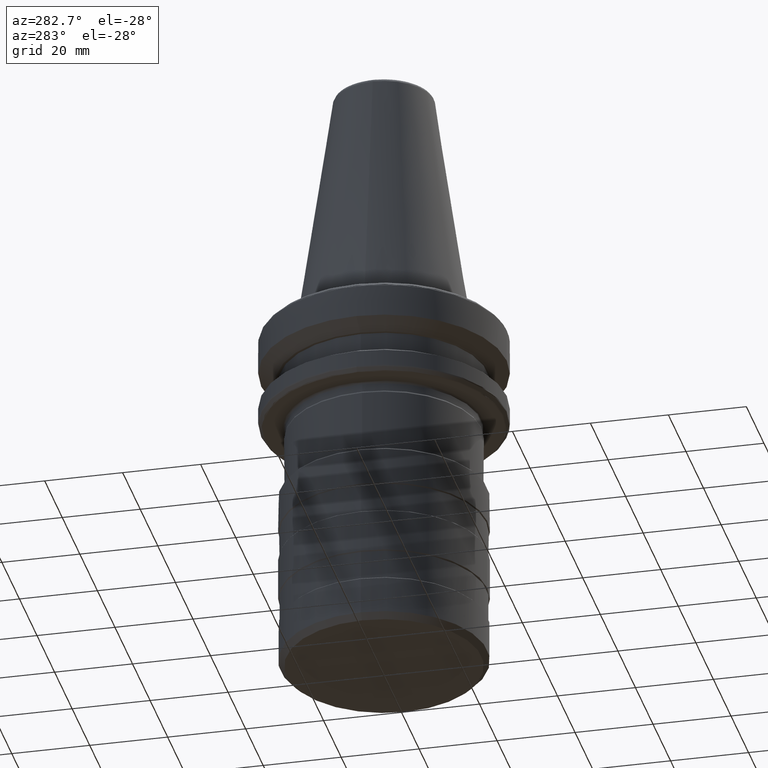
[diagram: clean part render]
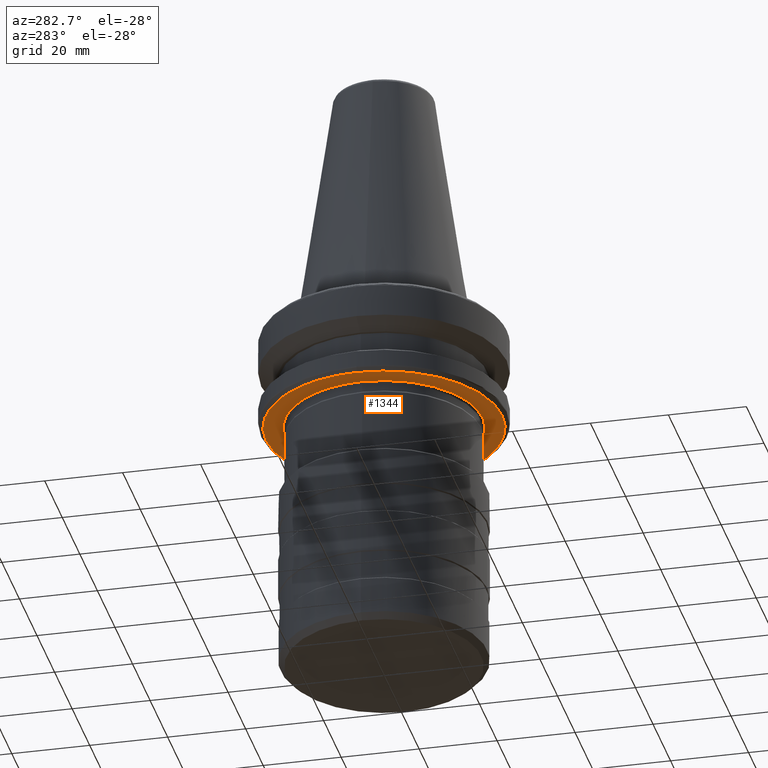
[diagram: same view with one face highlighted and labeled with its STEP entity id]
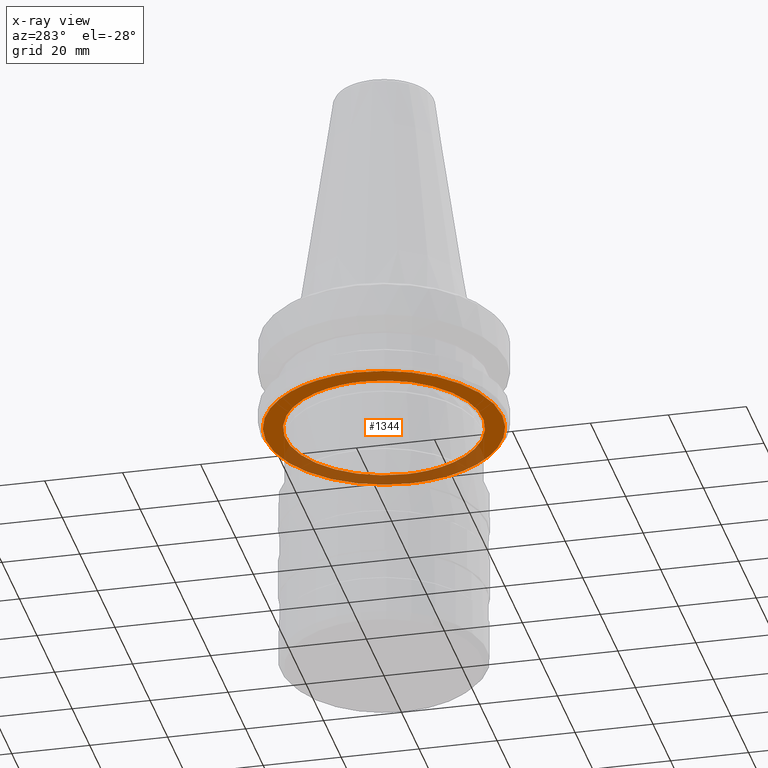
[diagram: x-ray of the same camera — body ghosted, the highlighted face saturated]
A machine part, auxiliary view. The second image highlights one B-rep face of the part: STEP entity #1344.
The next image is the same camera in x-ray: the body ghosted, the highlighted face saturated — about 34% of this face is hidden behind the body in this view.
In plain terms, the highlighted planar face has unit normal (0, 0, -1).
Its self-contained STEP definition (entity closure, byte-faithful):
#1 = B_SPLINE_CURVE_WITH_KNOTS ( 'NONE', 3,
 ( #124, #126, #106, #105, #102, #98, #96, #95, #93, #92, #89, #86, #85, #83, #81, #77, #75, #72, #71, #68, #61, #58, #57, #55, #53, #48, #45, #44, #41, #37, #34, #32, #29, #27, #22, #16, #15, #13, #11, #6, #3, #2, #2742, #1839, #1650, #1407, #2326, #1161, #2124, #730, #3173, #167, #1856, #425, #3159, #3147, #3127, #3116, #3104, #3093, #3080, #2029, #630, #2231, #3065, #3052, #3038, #3026, #3009, #3005, #2985, #2958, #2950, #2947, #2941, #2938, #2927, #2922, #2913, #2910, #2901, #2898, #909, #2479, #1159, #2884, #2862, #2849, #2837, #2822, #2816, #2804, #2791, #2766, #2752, #2733, #2721, #2709, #2697, #2676, #2673, #2655, #2642, #2634, #2631, #2616, #2601, #2597, #2585, #2579, #2567, #2549, #2539, #2528, #1619, #177, #1866, #2497, #2485, #2468, #2446, #2436, #2420, #2272, #920, #2492, #2410, #2401, #2389, #2379, #2065, #668, #2265, #2377, #2370, #2369, #2361, #2360, #2353, #2348 ),
 .UNSPECIFIED., .F., .F.,
 ( 4, 1, 1, 1, 1, 1, 1, 2, 2, 1, 1, 1, 1, 1, 1, 2, 2, 1, 1, 1, 1, 1, 1, 2, 2, 1, 1, 1, 1, 1, 1, 2, 2, 1, 1, 1, 1, 1, 1, 2, 2, 1, 1, 1, 1, 1, 2, 2, 1, 1, 1, 1, 2, 2, 2, 1, 1, 1, 1, 2, 2, 1, 1, 1, 1, 1, 2, 2, 1, 1, 1, 1, 1, 1, 2, 2, 1, 1, 1, 1, 1, 1, 2, 2, 1, 1, 1, 1, 1, 1, 2, 2, 1, 1, 1, 1, 1, 1, 2, 2, 1, 1, 1, 1, 1, 1, 2, 2, 4 ),
 ( 0.0000000000000000000, 0.03124999999999619700, 0.04687499999999429600, 0.05468749999999335900, 0.05859374999999288800, 0.06054687499999265200, 0.06152343749999254800, 0.06201171874999247100, 0.06249999999999238800, 0.09374999999998763500, 0.1093749999999852600, 0.1171874999999840500, 0.1210937499999834400, 0.1230468749999831400, 0.1240234374999829700, 0.1245117187499829200, 0.1249999999999828700, 0.1562499999999790200, 0.1718749999999771000, 0.1796874999999761000, 0.1835937499999756900, 0.1855468749999754900, 0.1865234374999754400, 0.1870117187499754100, 0.1874999999999753800, 0.2187499999999759600, 0.2343749999999762100, 0.2421874999999764100, 0.2460937499999765200, 0.2480468749999765700, 0.2490234374999765500, 0.2495117187499765700, 0.2499999999999766300, 0.2812499999999810700, 0.2968749999999833500, 0.3046874999999844600, 0.3085937499999850700, 0.3105468749999852900, 0.3115234374999854000, 0.3120117187499855100, 0.3124999999999856200, 0.3437499999999882300, 0.3593749999999895600, 0.3671874999999901700, 0.3710937499999905100, 0.3730468749999905600, 0.3740234374999905600, 0.3749999999999905600, 0.4062499999999902900, 0.4218749999999901200, 0.4296874999999900600, 0.4335937499999900600, 0.4355468749999900100, 0.4374999999999900100, 0.4999999999999895600, 0.5312499999999893400, 0.5468749999999892300, 0.5546874999999891200, 0.5585937499999891200, 0.5605468749999891200, 0.5624999999999890100, 0.5937499999999886800, 0.6093749999999885600, 0.6171874999999885600, 0.6210937499999884500, 0.6230468749999884500, 0.6240234374999884500, 0.6249999999999884500, 0.6562499999999894500, 0.6718749999999900100, 0.6796874999999902300, 0.6835937499999904500, 0.6855468749999905600, 0.6865234374999905600, 0.6870117187499905600, 0.6874999999999905600, 0.7187499999999894500, 0.7343749999999889000, 0.7421874999999887900, 0.7460937499999885600, 0.7480468749999884500, 0.7490234374999884500, 0.7495117187499884500, 0.7499999999999883400, 0.7812499999999891200, 0.7968749999999894500, 0.8046874999999895600, 0.8085937499999896700, 0.8105468749999897900, 0.8115234374999897900, 0.8120117187499897900, 0.8124999999999897900, 0.8437499999999912300, 0.8593749999999920100, 0.8671874999999925600, 0.8710937499999926700, 0.8730468749999927800, 0.8740234374999928900, 0.8745117187499930100, 0.8749999999999930100, 0.9062499999999944500, 0.9218749999999952300, 0.9296874999999955600, 0.9335937499999957800, 0.9355468749999958900, 0.9365234374999960000, 0.9370117187499960000, 0.9374999999999960000, 1.000000000000000000 ),
 .UNSPECIFIED. ) ;
#2 = CARTESIAN_POINT ( 'NONE',  ( 19.70759785706100700, 15.88992787574538700, -26.99999999999999600 ) ) ;
#3 = CARTESIAN_POINT ( 'NONE',  ( 20.24831878283100300, 15.16890737674791500, -27.00000000000000000 ) ) ;
#6 = CARTESIAN_POINT ( 'NONE',  ( 20.25505682243481700, 15.15990716839539900, -27.00000000000000000 ) ) ;
#11 = CARTESIAN_POINT ( 'NONE',  ( 20.27008978907835500, 15.13979989706015200, -27.00000000000000000 ) ) ;
#13 = CARTESIAN_POINT ( 'NONE',  ( 20.29261538261001300, 15.10962455013603800, -27.00000000000000000 ) ) ;
#15 = CARTESIAN_POINT ( 'NONE',  ( 20.34500810581500100, 15.03911432786448000, -27.00000000000000000 ) ) ;
#16 = CARTESIAN_POINT ( 'NONE',  ( 20.44912557208272500, 14.89768956552687700, -26.99999999999999300 ) ) ;
#22 = CARTESIAN_POINT ( 'NONE',  ( 20.65468858404920700, 14.61322276967351800, -27.00000000000000400 ) ) ;
#27 = CARTESIAN_POINT ( 'NONE',  ( 21.05512692570624400, 14.03782009325436600, -27.00000000000000000 ) ) ;
#29 = CARTESIAN_POINT ( 'NONE',  ( 21.81325287991667500, 12.86113840156619900, -27.00000000000000000 ) ) ;
#32 = CARTESIAN_POINT ( 'NONE',  ( 22.38978816220507200, 11.80819465637664000, -27.00000000000000000 ) ) ;
#34 = CARTESIAN_POINT ( 'NONE',  ( 22.74706967159098900, 11.07524063812788600, -27.00000000000000400 ) ) ;
#37 = CARTESIAN_POINT ( 'NONE',  ( 22.75139803042312900, 11.06634423136310200, -27.00000000000001100 ) ) ;
#41 = CARTESIAN_POINT ( 'NONE',  ( 22.76120219621035200, 11.04616368164451500, -27.00000000000000400 ) ) ;
#44 = CARTESIAN_POINT ( 'NONE',  ( 22.77588761324035000, 11.01588492977819600, -27.00000000000000000 ) ) ;
#45 = CARTESIAN_POINT ( 'NONE',  ( 22.81000776475438500, 10.94517901773773100, -26.99999999999999600 ) ) ;
#48 = CARTESIAN_POINT ( 'NONE',  ( 22.87766478155865400, 10.80354522958055900, -27.00000000000000000 ) ) ;
#53 = CARTESIAN_POINT ( 'NONE',  ( 23.01064567027204400, 10.51938979696127100, -26.99999999999998900 ) ) ;
#55 = CARTESIAN_POINT ( 'NONE',  ( 23.26727486811810800, 9.947527506502877900, -27.00000000000000400 ) ) ;
#57 = CARTESIAN_POINT ( 'NONE',  ( 23.74320294548735800, 8.789597224706769300, -27.00000000000000400 ) ) ;
#58 = CARTESIAN_POINT ( 'NONE',  ( 24.08714646610756600, 7.772732924517013600, -27.00000000000000400 ) ) ;
#61 = CARTESIAN_POINT ( 'NONE',  ( 24.29113833568242200, 7.073238547964074900, -27.00000000000000000 ) ) ;
#68 = CARTESIAN_POINT ( 'NONE',  ( 24.29356541856781600, 7.064895190226048200, -27.00000000000001100 ) ) ;
#71 = CARTESIAN_POINT ( 'NONE',  ( 24.29911365320728600, 7.045786859128013700, -27.00000000000000000 ) ) ;
#72 = CARTESIAN_POINT ( 'NONE',  ( 24.30741882046561400, 7.017120841067926700, -27.00000000000000400 ) ) ;
#75 = CARTESIAN_POINT ( 'NONE',  ( 24.32667725116206700, 6.950208815703138800, -27.00000000000000000 ) ) ;
#77 = CARTESIAN_POINT ( 'NONE',  ( 24.36471294092977800, 6.816286165408451200, -27.00000000000000400 ) ) ;
#81 = CARTESIAN_POINT ( 'NONE',  ( 24.43885963396438000, 6.548046466558788300, -27.00000000000000000 ) ) ;
#83 = CARTESIAN_POINT ( 'NONE',  ( 24.57945427403039700, 6.009989475818181300, -27.00000000000000700 ) ) ;
#85 = CARTESIAN_POINT ( 'NONE',  ( 24.82984857014956900, 4.927565122171978700, -27.00000000000001100 ) ) ;
#86 = CARTESIAN_POINT ( 'NONE',  ( 24.99168085137255000, 3.988955038192344200, -26.99999999999999600 ) ) ;
#89 = CARTESIAN_POINT ( 'NONE',  ( 25.07742533986922600, 3.348554767751062300, -27.00000000000000000 ) ) ;
#92 = CARTESIAN_POINT ( 'NONE',  ( 25.07843386591239500, 3.340988078441963900, -26.99999999999999600 ) ) ;
#93 = CARTESIAN_POINT ( 'NONE',  ( 25.08074787253885800, 3.323568221957828000, -27.00000000000000400 ) ) ;
#95 = CARTESIAN_POINT ( 'NONE',  ( 25.08420521708496400, 3.297437581909527200, -26.99999999999999300 ) ) ;
#96 = CARTESIAN_POINT ( 'NONE',  ( 25.09217669660422300, 3.236460101208896500, -27.00000000000000700 ) ) ;
#98 = CARTESIAN_POINT ( 'NONE',  ( 25.10773702462259000, 3.114481190789131200, -27.00000000000000400 ) ) ;
#102 = CARTESIAN_POINT ( 'NONE',  ( 25.13732715657889100, 2.870427573875642800, -26.99999999999999600 ) ) ;
#105 = CARTESIAN_POINT ( 'NONE',  ( 25.19038532416964000, 2.381937155752838800, -27.00000000000000400 ) ) ;
#106 = CARTESIAN_POINT ( 'NONE',  ( 25.27201327406381600, 1.403423582323891400, -26.99999999999999300 ) ) ;
#124 = CARTESIAN_POINT ( 'NONE',  ( 25.29999999848808700, 0.0000000000000000000, -26.99999999984028100 ) ) ;
#126 = CARTESIAN_POINT ( 'NONE',  ( 25.29999999919485300, 0.5620701127847933500, -27.00000000000000700 ) ) ;
#137 = CARTESIAN_POINT ( 'NONE',  ( -25.29999999848808700, 0.0000000000000000000, -26.99999999984028400 ) ) ;
#167 = CARTESIAN_POINT ( 'NONE',  ( 15.90973808891065200, 19.69518901342916500, -27.00000000000000400 ) ) ;
#175 = CARTESIAN_POINT ( 'NONE',  ( -25.29999999848808700, 0.0000000000000000000, -26.99999999984028400 ) ) ;
#177 = CARTESIAN_POINT ( 'NONE',  ( -22.73056065726004600, 11.10908274653019100, -27.00000000000000000 ) ) ;
#188 = CARTESIAN_POINT ( 'NONE',  ( -25.08074787253889700, -3.323568221961345600, -27.00000000000000700 ) ) ;
#259 = DIRECTION ( 'NONE',  ( -1.000000000000000000, 0.0000000000000000000, -0.0000000000000000000 ) ) ;
#260 = DIRECTION ( 'NONE',  ( 0.0000000000000000000, 0.0000000000000000000, -1.000000000000000000 ) ) ;
#270 = CARTESIAN_POINT ( 'NONE',  ( 30.69832634999999900, -30.69832634999999900, -27.00000000000000000 ) ) ;
#279 = PLANE ( 'NONE',  #1037 ) ;
#367 = EDGE_LOOP ( 'NONE', ( #1122, #2057 ) ) ;
#418 = EDGE_CURVE ( 'NONE', #699, #2266, #467, .T. ) ;
#425 = CARTESIAN_POINT ( 'NONE',  ( 13.36730212562983800, 21.49013669487330000, -27.00000000000000000 ) ) ;
#449 = CARTESIAN_POINT ( 'NONE',  ( -25.07742533986936500, -3.348554767751069900, -27.00000000000000000 ) ) ;
#467 =( BOUNDED_CURVE ( )  B_SPLINE_CURVE ( 3, ( #2153, #1374, #1687, #2201 ),
 .UNSPECIFIED., .F., .F. ) 
 B_SPLINE_CURVE_WITH_KNOTS ( ( 4, 4 ),
 ( 0.0000000000000000000, 1.000000000000000000 ),
 .UNSPECIFIED. ) 
 CURVE ( )  GEOMETRIC_REPRESENTATION_ITEM ( )  RATIONAL_B_SPLINE_CURVE ( ( 0.9777428172505076000, 0.3259142724168357900, 0.3259142724168357900, 0.9777428172505076000 ) ) 
 REPRESENTATION_ITEM ( '' )  );
#630 = CARTESIAN_POINT ( 'NONE',  ( 7.942536895876052000, 24.03084427828005300, -27.00000000000000000 ) ) ;
#668 = CARTESIAN_POINT ( 'NONE',  ( -25.03782867249879400, 3.634284708277769400, -26.99999999999999600 ) ) ;
#682 = CARTESIAN_POINT ( 'NONE',  ( -24.82984857013788400, -4.927565122137342400, -26.99999999999999300 ) ) ;
#690 = CARTESIAN_POINT ( 'NONE',  ( 25.29999999848808700, 0.0000000000000000000, -26.99999999984028100 ) ) ;
#699 = VERTEX_POINT ( 'NONE', #1137 ) ;
#730 = CARTESIAN_POINT ( 'NONE',  ( 16.65651619210649800, 19.04338760267510000, -26.99999999999999600 ) ) ;
#863 = EDGE_CURVE ( 'NONE', #2266, #699, #3040, .T. ) ;
#909 = CARTESIAN_POINT ( 'NONE',  ( -11.50992291638713800, 22.53090381751106700, -27.00000000000000000 ) ) ;
#918 = CARTESIAN_POINT ( 'NONE',  ( -25.29999999919484600, -0.5620701128464349300, -27.00000000000000700 ) ) ;
#920 = CARTESIAN_POINT ( 'NONE',  ( -24.27539663381472900, 7.127072133854580800, -26.99999999999999300 ) ) ;
#931 = CARTESIAN_POINT ( 'NONE',  ( -24.43885963395928200, -6.548046466543675900, -26.99999999999999300 ) ) ;
#984 = CARTESIAN_POINT ( 'NONE',  ( 30.33431456890453500, 0.0000000000000000000, -27.00000000001087500 ) ) ;
#986 = CARTESIAN_POINT ( 'NONE',  ( 30.33431456882855300, -60.66862913815607100, -27.00000000001812200 ) ) ;
#999 = CARTESIAN_POINT ( 'NONE',  ( -30.33431456890454200, -9.332507879652166100E-010, -27.00000000001086800 ) ) ;
#1035 = EDGE_LOOP ( 'NONE', ( #2416, #1364 ) ) ;
#1037 = AXIS2_PLACEMENT_3D ( 'NONE', #270, #260, #259 ) ;
#1048 = CARTESIAN_POINT ( 'NONE',  ( -30.33431456882855300, -60.66862913815607100, -27.00000000001812200 ) ) ;
#1118 = VERTEX_POINT ( 'NONE', #690 ) ;
#1122 = ORIENTED_EDGE ( 'NONE', *, *, #418, .F. ) ;
#1137 = CARTESIAN_POINT ( 'NONE',  ( 30.33431456890453500, 0.0000000000000000000, -27.00000000001087500 ) ) ;
#1159 = CARTESIAN_POINT ( 'NONE',  ( -11.79298778484429100, 22.38339606563950600, -26.99999999999999300 ) ) ;
#1161 = CARTESIAN_POINT ( 'NONE',  ( 16.70867799860748100, 18.99766628776638200, -27.00000000000000000 ) ) ;
#1170 = CARTESIAN_POINT ( 'NONE',  ( -25.19038532416965000, -2.381937155833594700, -26.99999999999999300 ) ) ;
#1274 = FACE_OUTER_BOUND ( 'NONE', #367, .T. ) ;
#1344 = ADVANCED_FACE ( 'NONE', ( #1274, #2092 ), #279, .T. ) ;
#1364 = ORIENTED_EDGE ( 'NONE', *, *, #1485, .T. ) ;
#1374 = CARTESIAN_POINT ( 'NONE',  ( 30.33431456882852800, 60.66862913815602800, -27.00000000001811900 ) ) ;
#1390 = CARTESIAN_POINT ( 'NONE',  ( -25.10773702462260800, -3.114481190814159600, -27.00000000000000000 ) ) ;
#1407 = CARTESIAN_POINT ( 'NONE',  ( 16.92646141387418300, 18.80444191449308300, -26.99999999999999300 ) ) ;
#1485 = EDGE_CURVE ( 'NONE', #1118, #1947, #1, .T. ) ;
#1619 = CARTESIAN_POINT ( 'NONE',  ( -22.71952455623663900, 11.13163398434619500, -27.00000000000000400 ) ) ;
#1630 = CARTESIAN_POINT ( 'NONE',  ( -25.08420521708501700, -3.297437581915883900, -27.00000000000000000 ) ) ;
#1650 = CARTESIAN_POINT ( 'NONE',  ( 17.21356967773894600, 18.54379537910292100, -27.00000000000000400 ) ) ;
#1687 = CARTESIAN_POINT ( 'NONE',  ( -30.33431456882852800, 60.66862913815602800, -27.00000000001811900 ) ) ;
#1839 = CARTESIAN_POINT ( 'NONE',  ( 17.77657606892847800, 18.01216846480565400, -27.00000000000000000 ) ) ;
#1856 = CARTESIAN_POINT ( 'NONE',  ( 14.77411256656360400, 20.57808359398136500, -27.00000000000000000 ) ) ;
#1866 = CARTESIAN_POINT ( 'NONE',  ( -22.73666092508850800, 11.09659186174040000, -27.00000000000000700 ) ) ;
#1873 = CARTESIAN_POINT ( 'NONE',  ( -25.07843386591242300, -3.340988078443579900, -26.99999999999999600 ) ) ;
#1947 = VERTEX_POINT ( 'NONE', #137 ) ;
#2029 = CARTESIAN_POINT ( 'NONE',  ( 9.618244267431926200, 23.43988890206702500, -27.00000000000001100 ) ) ;
#2057 = ORIENTED_EDGE ( 'NONE', *, *, #863, .F. ) ;
#2065 = CARTESIAN_POINT ( 'NONE',  ( -24.99699267706518300, 3.909599695408541900, -27.00000000000000000 ) ) ;
#2077 = CARTESIAN_POINT ( 'NONE',  ( -24.99168085136587800, -3.988955038172401500, -26.99999999999998900 ) ) ;
#2092 = FACE_BOUND ( 'NONE', #1035, .T. ) ;
#2124 = CARTESIAN_POINT ( 'NONE',  ( 16.67739092375737500, 19.02510830335760900, -26.99999999999999300 ) ) ;
#2153 = CARTESIAN_POINT ( 'NONE',  ( 30.33431456890453500, 0.0000000000000000000, -27.00000000001087500 ) ) ;
#2201 = CARTESIAN_POINT ( 'NONE',  ( -30.33431456890454200, -9.332507879652166100E-010, -27.00000000001087100 ) ) ;
#2231 = CARTESIAN_POINT ( 'NONE',  ( 7.090006753789768200, 24.28872401891411700, -27.00000000000000000 ) ) ;
#2265 = CARTESIAN_POINT ( 'NONE',  ( -25.05728724245054900, 3.496416224134011800, -27.00000000000000000 ) ) ;
#2266 = VERTEX_POINT ( 'NONE', #2382 ) ;
#2272 = CARTESIAN_POINT ( 'NONE',  ( -24.26590781280040700, 7.159361952135766300, -27.00000000000000400 ) ) ;
#2278 = CARTESIAN_POINT ( 'NONE',  ( -24.57945427402162900, -6.009989475792260700, -26.99999999999999600 ) ) ;
#2326 = CARTESIAN_POINT ( 'NONE',  ( 16.78150601487430300, 18.93347345174853300, -27.00000000000000000 ) ) ;
#2348 = CARTESIAN_POINT ( 'NONE',  ( -25.29999999848808700, 0.0000000000000000000, -26.99999999984028400 ) ) ;
#2353 = CARTESIAN_POINT ( 'NONE',  ( -25.29999999919503000, 1.124827328018365400, -27.00000000000000400 ) ) ;
#2360 = CARTESIAN_POINT ( 'NONE',  ( -25.22536873096343500, 2.244296354553244800, -26.99999999999999600 ) ) ;
#2361 = CARTESIAN_POINT ( 'NONE',  ( -25.07494008032140800, 3.367111069644155700, -27.00000000000000000 ) ) ;
#2369 = CARTESIAN_POINT ( 'NONE',  ( -25.07345774841462200, 3.378131462954409700, -27.00000000000000400 ) ) ;
#2370 = CARTESIAN_POINT ( 'NONE',  ( -25.07079217029829700, 3.397852078615226600, -27.00000000000000400 ) ) ;
#2377 = CARTESIAN_POINT ( 'NONE',  ( -25.06677667048516500, 3.427429234417553400, -27.00000000000000400 ) ) ;
#2379 = CARTESIAN_POINT ( 'NONE',  ( -24.90764526407762200, 4.458541745043183000, -26.99999999999999300 ) ) ;
#2382 = CARTESIAN_POINT ( 'NONE',  ( -30.33431456890454200, -9.332507879652166100E-010, -27.00000000001086800 ) ) ;
#2389 = CARTESIAN_POINT ( 'NONE',  ( -24.69824874962112200, 5.549674145804840600, -26.99999999999998900 ) ) ;
#2401 = CARTESIAN_POINT ( 'NONE',  ( -24.46613455697606600, 6.473356149016061600, -26.99999999999999300 ) ) ;
#2410 = CARTESIAN_POINT ( 'NONE',  ( -24.28521664676204100, 7.093541310083244500, -27.00000000000000400 ) ) ;
#2416 = ORIENTED_EDGE ( 'NONE', *, *, #3085, .T. ) ;
#2420 = CARTESIAN_POINT ( 'NONE',  ( -24.24362204261267100, 7.234647732758289400, -27.00000000000000400 ) ) ;
#2436 = CARTESIAN_POINT ( 'NONE',  ( -24.19846975095354200, 7.384990779202713200, -27.00000000000000400 ) ) ;
#2446 = CARTESIAN_POINT ( 'NONE',  ( -24.10584216250039800, 7.684762812888787500, -26.99999999999999300 ) ) ;
#2468 = CARTESIAN_POINT ( 'NONE',  ( -23.91129496505466500, 8.280650643449977400, -26.99999999999998600 ) ) ;
#2479 = CARTESIAN_POINT ( 'NONE',  ( -11.70820388871674000, 22.42800166304705200, -27.00000000000000400 ) ) ;
#2485 = CARTESIAN_POINT ( 'NONE',  ( -23.48503248800551500, 9.457801357328500900, -26.99999999999999300 ) ) ;
#2491 = CARTESIAN_POINT ( 'NONE',  ( -25.27201327406381300, -1.403423582431722300, -27.00000000000000400 ) ) ;
#2492 = CARTESIAN_POINT ( 'NONE',  ( -24.28170868707944400, 7.105540147505219100, -26.99999999999999600 ) ) ;
#2497 = CARTESIAN_POINT ( 'NONE',  ( -23.05594793826441000, 10.44171634537784300, -27.00000000000000400 ) ) ;
#2505 = CARTESIAN_POINT ( 'NONE',  ( -24.36471294092704900, -6.816286165400368800, -27.00000000000000700 ) ) ;
#2528 = CARTESIAN_POINT ( 'NONE',  ( -22.70294667940161300, 11.16544618615239600, -27.00000000000000400 ) ) ;
#2539 = CARTESIAN_POINT ( 'NONE',  ( -22.66409888968712100, 11.24423873927540300, -27.00000000000000000 ) ) ;
#2549 = CARTESIAN_POINT ( 'NONE',  ( -22.58573900186027900, 11.40141350782236700, -26.99999999999999300 ) ) ;
#2567 = CARTESIAN_POINT ( 'NONE',  ( -22.42636199261541200, 11.71412169412007700, -27.00000000000000000 ) ) ;
#2571 = B_SPLINE_CURVE_WITH_KNOTS ( 'NONE', 3,
 ( #175, #918, #2491, #1170, #2799, #1390, #3087, #1630, #188, #1873, #449, #2077, #682, #2278, #931, #2505, #3174, #3170, #3166, #3162, #3161, #3157, #3152, #3149, #3148, #3143, #3139, #3138, #3136, #3130, #3129, #3123, #3118, #3117, #3110, #3106, #3105, #3101, #3095, #3094, #3091, #3086, #3083, #3082, #3076, #3072, #3067, #3062, #3061, #3056, #3054, #3053, #3050, #3049, #3044, #3041, #3036, #3035, #3027, #3024, #3023, #3011, #3008, #3007, #2999, #2997, #2996, #2990, #2987, #2986, #2977, #2975, #2969, #2965, #2959, #2954, #2952, #2949, #2948, #2945, #2940, #2939, #2936, #2931, #2926, #2923, #2919, #2916, #2912, #2911, #2906, #2904, #2900, #2899, #2896, #2891, #2887, #2886, #2880, #2876, #2871, #2868, #2864, #2863, #2860, #2852, #2851, #2846, #2840, #2839, #2833, #2825, #2823, #2820, #2818, #2814, #2806, #2805, #2800, #2798, #2793, #2792, #2789, #2784, #2781, #2778, #2776, #2775, #2772, #2769, #2768, #2762, #2760, #2755, #2753, #2749, #2748, #2741, #2736, #2729 ),
 .UNSPECIFIED., .F., .F.,
 ( 4, 1, 1, 1, 1, 1, 1, 2, 2, 1, 1, 1, 1, 1, 1, 2, 2, 1, 1, 1, 1, 1, 1, 2, 2, 1, 1, 1, 1, 1, 1, 2, 2, 1, 1, 1, 1, 1, 1, 2, 2, 1, 1, 1, 1, 1, 2, 2, 1, 1, 1, 1, 2, 2, 2, 1, 1, 1, 1, 2, 2, 1, 1, 1, 1, 1, 2, 2, 1, 1, 1, 1, 1, 1, 2, 2, 1, 1, 1, 1, 1, 1, 2, 2, 1, 1, 1, 1, 1, 1, 2, 2, 1, 1, 1, 1, 1, 1, 2, 2, 1, 1, 1, 1, 1, 1, 2, 2, 4 ),
 ( 0.0000000000000000000, 0.03125000000000508600, 0.04687500000000761200, 0.05468750000000886800, 0.05859375000000949900, 0.06054687500000981900, 0.06152343750000996400, 0.06201171875001006800, 0.06250000000001015900, 0.09375000000001593200, 0.1093750000000187900, 0.1171875000000202100, 0.1210937500000209300, 0.1230468750000212600, 0.1240234375000214800, 0.1245117187500215800, 0.1250000000000216800, 0.1562500000000281400, 0.1718750000000314200, 0.1796875000000330600, 0.1835937500000339200, 0.1855468750000342500, 0.1865234375000344400, 0.1870117187500345800, 0.1875000000000347200, 0.2187500000000416100, 0.2343750000000450200, 0.2421875000000467100, 0.2460937500000475700, 0.2480468750000480700, 0.2490234375000483200, 0.2495117187500483800, 0.2500000000000484600, 0.2812500000000501800, 0.2968750000000510100, 0.3046875000000514000, 0.3085937500000516300, 0.3105468750000516800, 0.3115234375000516800, 0.3120117187500517400, 0.3125000000000517400, 0.3437500000000485200, 0.3593750000000469100, 0.3671875000000460700, 0.3710937500000456300, 0.3730468750000454600, 0.3740234375000454100, 0.3750000000000453000, 0.4062500000000414100, 0.4218750000000395200, 0.4296875000000385200, 0.4335937500000380300, 0.4355468750000378000, 0.4375000000000375800, 0.5000000000000295300, 0.5312500000000256500, 0.5468750000000236500, 0.5546875000000226500, 0.5585937500000222000, 0.5605468750000219800, 0.5625000000000217600, 0.5937500000000179900, 0.6093750000000161000, 0.6171875000000152100, 0.6210937500000147700, 0.6230468750000144300, 0.6240234375000144300, 0.6250000000000143200, 0.6562500000000126600, 0.6718750000000117700, 0.6796875000000113200, 0.6835937500000111000, 0.6855468750000109900, 0.6865234375000108800, 0.6870117187500107700, 0.6875000000000106600, 0.7187500000000054400, 0.7343750000000028900, 0.7421875000000016700, 0.7460937500000011100, 0.7480468750000007800, 0.7490234375000005600, 0.7495117187500005600, 0.7500000000000004400, 0.7812499999999974500, 0.7968749999999960000, 0.8046874999999953400, 0.8085937499999948900, 0.8105468749999946700, 0.8115234374999945600, 0.8120117187499944500, 0.8124999999999944500, 0.8437499999999953400, 0.8593749999999957800, 0.8671874999999960000, 0.8710937499999961100, 0.8730468749999962300, 0.8740234374999962300, 0.8745117187499962300, 0.8749999999999962300, 0.9062499999999975600, 0.9218749999999981100, 0.9296874999999984500, 0.9335937499999985600, 0.9355468749999986700, 0.9365234374999986700, 0.9370117187499986700, 0.9374999999999985600, 1.000000000000000000 ),
 .UNSPECIFIED. ) ;
#2579 = CARTESIAN_POINT ( 'NONE',  ( -22.09697903976083200, 12.33297266353058900, -26.99999999999999300 ) ) ;
#2585 = CARTESIAN_POINT ( 'NONE',  ( -21.39569739659205900, 13.54441298961200200, -26.99999999999999300 ) ) ;
#2597 = CARTESIAN_POINT ( 'NONE',  ( -20.72171472394531100, 14.53777050441389900, -27.00000000000000000 ) ) ;
#2601 = CARTESIAN_POINT ( 'NONE',  ( -20.23247320678275700, 15.19003483567918700, -27.00000000000000700 ) ) ;
#2616 = CARTESIAN_POINT ( 'NONE',  ( -20.22333930876174800, 15.20219349503135200, -27.00000000000000000 ) ) ;
#2631 = CARTESIAN_POINT ( 'NONE',  ( -20.20665376945773400, 15.22436373612865300, -27.00000000000000400 ) ) ;
#2634 = CARTESIAN_POINT ( 'NONE',  ( -20.18160061179046500, 15.25759584365415100, -27.00000000000000400 ) ) ;
#2642 = CARTESIAN_POINT ( 'NONE',  ( -20.12296930292138000, 15.33497464903689300, -26.99999999999999600 ) ) ;
#2655 = CARTESIAN_POINT ( 'NONE',  ( -20.00501092126800300, 15.48908114442893500, -26.99999999999999300 ) ) ;
#2673 = CARTESIAN_POINT ( 'NONE',  ( -19.76631110230040300, 15.79468967371916800, -26.99999999999999300 ) ) ;
#2676 = CARTESIAN_POINT ( 'NONE',  ( -19.27777924172184100, 16.39548888632425200, -26.99999999999999600 ) ) ;
#2697 = CARTESIAN_POINT ( 'NONE',  ( -18.25618662999125500, 17.55541592763275100, -26.99999999999999600 ) ) ;
#2709 = CARTESIAN_POINT ( 'NONE',  ( -17.30420057895336000, 18.47820244778012000, -27.00000000000000000 ) ) ;
#2721 = CARTESIAN_POINT ( 'NONE',  ( -16.62516981061937200, 19.07076010706318700, -27.00000000000000700 ) ) ;
#2729 = CARTESIAN_POINT ( 'NONE',  ( 25.29999999848808700, 0.0000000000000000000, -26.99999999984028100 ) ) ;
#2733 = CARTESIAN_POINT ( 'NONE',  ( -16.61290724940003800, 19.08144344827188700, -26.99999999999999600 ) ) ;
#2736 = CARTESIAN_POINT ( 'NONE',  ( 25.29999999919504100, -1.124827327938038700, -27.00000000000000700 ) ) ;
#2741 = CARTESIAN_POINT ( 'NONE',  ( 25.22536873096346000, -2.244296354472736300, -27.00000000000000400 ) ) ;
#2742 = CARTESIAN_POINT ( 'NONE',  ( 18.85774830514752400, 16.90757926214341500, -27.00000000000000400 ) ) ;
#2748 = CARTESIAN_POINT ( 'NONE',  ( 25.07494008032147200, -3.367111069644229500, -27.00000000000001100 ) ) ;
#2749 = CARTESIAN_POINT ( 'NONE',  ( 25.07345774841509800, -3.378131462952151100, -27.00000000000001100 ) ) ;
#2752 = CARTESIAN_POINT ( 'NONE',  ( -16.59017541576062600, 19.10120999497934600, -27.00000000000000400 ) ) ;
#2753 = CARTESIAN_POINT ( 'NONE',  ( 25.07079217029919200, -3.397852078611281400, -27.00000000000000400 ) ) ;
#2755 = CARTESIAN_POINT ( 'NONE',  ( 25.06677667048666100, -3.427429234411102600, -27.00000000000000000 ) ) ;
#2760 = CARTESIAN_POINT ( 'NONE',  ( 25.05728724245344800, -3.496416224121856600, -26.99999999999999600 ) ) ;
#2762 = CARTESIAN_POINT ( 'NONE',  ( 25.03782867250434300, -3.634284708254738000, -26.99999999999999600 ) ) ;
#2766 = CARTESIAN_POINT ( 'NONE',  ( -16.55605502008656400, 19.13082674885801300, -27.00000000000000400 ) ) ;
#2768 = CARTESIAN_POINT ( 'NONE',  ( 24.99699267707551800, -3.909599695366019500, -27.00000000000000400 ) ) ;
#2769 = CARTESIAN_POINT ( 'NONE',  ( 24.90764526409532200, -4.458541744970657000, -27.00000000000000000 ) ) ;
#2772 = CARTESIAN_POINT ( 'NONE',  ( 24.69824874964476900, -5.549674145708143800, -26.99999999999999600 ) ) ;
#2775 = CARTESIAN_POINT ( 'NONE',  ( 24.46613455698979300, -6.473356148960098400, -27.00000000000000000 ) ) ;
#2776 = CARTESIAN_POINT ( 'NONE',  ( 24.28521664676226900, -7.093541310082595300, -26.99999999999999600 ) ) ;
#2778 = CARTESIAN_POINT ( 'NONE',  ( 24.28170868707976700, -7.105540147504376200, -26.99999999999999600 ) ) ;
#2781 = CARTESIAN_POINT ( 'NONE',  ( 24.27539663381497800, -7.127072133854385400, -27.00000000000000000 ) ) ;
#2784 = CARTESIAN_POINT ( 'NONE',  ( 24.26590781280049200, -7.159361952136502600, -27.00000000000000000 ) ) ;
#2789 = CARTESIAN_POINT ( 'NONE',  ( 24.24362204261244400, -7.234647732761240800, -27.00000000000000400 ) ) ;
#2791 = CARTESIAN_POINT ( 'NONE',  ( -16.47628224700921300, 19.19970104463056500, -27.00000000000000400 ) ) ;
#2792 = CARTESIAN_POINT ( 'NONE',  ( 24.19846975095267900, -7.384990779209792000, -27.00000000000001100 ) ) ;
#2793 = CARTESIAN_POINT ( 'NONE',  ( 24.10584216249840500, -7.684762812903302100, -26.99999999999999600 ) ) ;
#2798 = CARTESIAN_POINT ( 'NONE',  ( 23.91129496505098500, -8.280650643475894400, -26.99999999999999600 ) ) ;
#2799 = CARTESIAN_POINT ( 'NONE',  ( -25.13732715657890500, -2.870427573922619000, -26.99999999999999300 ) ) ;
#2800 = CARTESIAN_POINT ( 'NONE',  ( 23.48503248800057400, -9.457801357363450700, -27.00000000000000000 ) ) ;
#2804 = CARTESIAN_POINT ( 'NONE',  ( -16.31610263483627000, 19.33652378306502200, -27.00000000000000400 ) ) ;
#2805 = CARTESIAN_POINT ( 'NONE',  ( 23.05594793826211800, -10.44171634539680800, -27.00000000000000400 ) ) ;
#2806 = CARTESIAN_POINT ( 'NONE',  ( 22.73666092508964100, -11.09659186173787000, -26.99999999999999600 ) ) ;
#2814 = CARTESIAN_POINT ( 'NONE',  ( 22.73056065726089200, -11.10908274652799400, -27.00000000000000000 ) ) ;
#2816 = CARTESIAN_POINT ( 'NONE',  ( -15.99320714641751300, 19.60646584749145300, -26.99999999999998600 ) ) ;
#2818 = CARTESIAN_POINT ( 'NONE',  ( 22.71952455623725300, -11.13163398434400600, -27.00000000000000000 ) ) ;
#2820 = CARTESIAN_POINT ( 'NONE',  ( 22.70294667940186900, -11.16544618615019000, -27.00000000000000000 ) ) ;
#2822 = CARTESIAN_POINT ( 'NONE',  ( -15.33727111328836800, 20.13153632657418500, -26.99999999999999600 ) ) ;
#2823 = CARTESIAN_POINT ( 'NONE',  ( 22.66409888968654900, -11.24423873927319800, -26.99999999999999600 ) ) ;
#2825 = CARTESIAN_POINT ( 'NONE',  ( 22.58573900185821200, -11.40141350782016800, -26.99999999999999600 ) ) ;
#2833 = CARTESIAN_POINT ( 'NONE',  ( 22.42636199261059800, -11.71412169411786600, -27.00000000000000400 ) ) ;
#2837 = CARTESIAN_POINT ( 'NONE',  ( -13.98481882186363200, 21.12242268565918800, -27.00000000000000400 ) ) ;
#2839 = CARTESIAN_POINT ( 'NONE',  ( 22.09697903975183000, -12.33297266352832400, -27.00000000000000000 ) ) ;
#2840 = CARTESIAN_POINT ( 'NONE',  ( 21.39569739657995100, -13.54441298960954000, -27.00000000000000000 ) ) ;
#2846 = CARTESIAN_POINT ( 'NONE',  ( 20.72171472393947100, -14.53777050441112300, -27.00000000000000000 ) ) ;
#2849 = CARTESIAN_POINT ( 'NONE',  ( -12.75600790035707600, 21.87017453787977300, -27.00000000000000000 ) ) ;
#2851 = CARTESIAN_POINT ( 'NONE',  ( 20.23247320678522600, -15.19003483567607800, -27.00000000000000400 ) ) ;
#2852 = CARTESIAN_POINT ( 'NONE',  ( 20.22333930876601800, -15.20219349502601600, -26.99999999999999600 ) ) ;
#2860 = CARTESIAN_POINT ( 'NONE',  ( 20.20665376946393700, -15.22436373612112500, -26.99999999999999300 ) ) ;
#2862 = CARTESIAN_POINT ( 'NONE',  ( -11.87931592919054100, 22.33769675128963100, -26.99999999999999300 ) ) ;
#2863 = CARTESIAN_POINT ( 'NONE',  ( 20.18160061179953100, -15.25759584364333300, -27.00000000000000000 ) ) ;
#2864 = CARTESIAN_POINT ( 'NONE',  ( 20.12296930293695900, -15.33497464901863200, -26.99999999999999600 ) ) ;
#2868 = CARTESIAN_POINT ( 'NONE',  ( 20.00501092129595500, -15.48908114439649900, -26.99999999999999600 ) ) ;
#2871 = CARTESIAN_POINT ( 'NONE',  ( 19.76631110235057100, -15.79468967366130800, -27.00000000000000000 ) ) ;
#2876 = CARTESIAN_POINT ( 'NONE',  ( 19.27777924180621100, -16.39548888622726300, -27.00000000000000000 ) ) ;
#2880 = CARTESIAN_POINT ( 'NONE',  ( 18.25618663010318000, -17.55541592750449500, -27.00000000000000000 ) ) ;
#2884 = CARTESIAN_POINT ( 'NONE',  ( -11.84946734594213800, 22.35354685090873500, -27.00000000000000700 ) ) ;
#2886 = CARTESIAN_POINT ( 'NONE',  ( 17.30420057901889000, -18.47820244770554200, -27.00000000000000000 ) ) ;
#2887 = CARTESIAN_POINT ( 'NONE',  ( 16.62516981062186300, -19.07076010706127200, -27.00000000000000000 ) ) ;
#2891 = CARTESIAN_POINT ( 'NONE',  ( 16.61290724940465300, -19.08144344826844800, -27.00000000000000000 ) ) ;
#2896 = CARTESIAN_POINT ( 'NONE',  ( 16.59017541576637500, -19.10120999497549100, -27.00000000000000700 ) ) ;
#2898 = CARTESIAN_POINT ( 'NONE',  ( -11.11155344626649100, 22.73199783515797300, -27.00000000000000000 ) ) ;
#2899 = CARTESIAN_POINT ( 'NONE',  ( 16.55605502009401100, -19.13082674885353600, -27.00000000000000700 ) ) ;
#2900 = CARTESIAN_POINT ( 'NONE',  ( 16.47628224702051700, -19.19970104462469300, -26.99999999999999300 ) ) ;
#2901 = CARTESIAN_POINT ( 'NONE',  ( -10.30758440417952400, 23.11534470532738400, -27.00000000000000000 ) ) ;
#2904 = CARTESIAN_POINT ( 'NONE',  ( 16.31610263485492900, -19.33652378305651400, -26.99999999999999300 ) ) ;
#2906 = CARTESIAN_POINT ( 'NONE',  ( 15.99320714644933400, -19.60646584747819400, -26.99999999999999600 ) ) ;
#2910 = CARTESIAN_POINT ( 'NONE',  ( -8.670725912622934600, 23.80667378516841000, -27.00000000000000000 ) ) ;
#2911 = CARTESIAN_POINT ( 'NONE',  ( 15.33727111334046000, -20.13153632655364300, -26.99999999999999600 ) ) ;
#2912 = CARTESIAN_POINT ( 'NONE',  ( 13.98481882193202900, -21.12242268563295900, -27.00000000000000400 ) ) ;
#2913 = CARTESIAN_POINT ( 'NONE',  ( -7.218126507204102500, 24.27004500703598200, -27.00000000000000000 ) ) ;
#2916 = CARTESIAN_POINT ( 'NONE',  ( 12.75600790039787200, -21.87017453786396400, -27.00000000000000400 ) ) ;
#2919 = CARTESIAN_POINT ( 'NONE',  ( 11.87931592919330700, -22.33769675128797500, -26.99999999999999600 ) ) ;
#2922 = CARTESIAN_POINT ( 'NONE',  ( -6.165790170008376600, 24.53725680212257000, -27.00000000000000700 ) ) ;
#2923 = CARTESIAN_POINT ( 'NONE',  ( 11.84946734594703700, -22.35354685090572200, -27.00000000000000000 ) ) ;
#2926 = CARTESIAN_POINT ( 'NONE',  ( 11.79298778485013300, -22.38339606563560500, -26.99999999999999600 ) ) ;
#2927 = CARTESIAN_POINT ( 'NONE',  ( -6.099899523049209000, 24.55372655784971400, -27.00000000000000400 ) ) ;
#2931 = CARTESIAN_POINT ( 'NONE',  ( 11.70820388872401800, -22.42800166304185100, -27.00000000000001100 ) ) ;
#2936 = CARTESIAN_POINT ( 'NONE',  ( 11.50992291639752600, -22.53090381750294600, -26.99999999999999600 ) ) ;
#2938 = CARTESIAN_POINT ( 'NONE',  ( -5.972013843117546000, 24.58515417123113500, -27.00000000000000000 ) ) ;
#2939 = CARTESIAN_POINT ( 'NONE',  ( 11.11155344628248500, -22.73199783514464300, -27.00000000000000000 ) ) ;
#2940 = CARTESIAN_POINT ( 'NONE',  ( 10.30758440420416900, -23.11534470530605000, -27.00000000000000700 ) ) ;
#2941 = CARTESIAN_POINT ( 'NONE',  ( -5.780092427729665700, 24.63153510807007900, -27.00000000000000000 ) ) ;
#2945 = CARTESIAN_POINT ( 'NONE',  ( 8.670725912654486200, -23.80667378514085500, -26.99999999999999600 ) ) ;
#2947 = CARTESIAN_POINT ( 'NONE',  ( -5.331625523391869200, 24.73443391139533500, -26.99999999999999300 ) ) ;
#2948 = CARTESIAN_POINT ( 'NONE',  ( 7.218126507223853000, -24.27004500701988800, -27.00000000000000400 ) ) ;
#2949 = CARTESIAN_POINT ( 'NONE',  ( 6.165790170011373300, -24.53725680212248200, -26.99999999999999600 ) ) ;
#2950 = CARTESIAN_POINT ( 'NONE',  ( -4.432090640985361300, 24.91893798751665700, -27.00000000000000000 ) ) ;
#2952 = CARTESIAN_POINT ( 'NONE',  ( 6.099899523065062100, -24.55372655784709200, -26.99999999999999600 ) ) ;
#2954 = CARTESIAN_POINT ( 'NONE',  ( 5.972013843144711000, -24.58515417122697900, -26.99999999999999300 ) ) ;
#2958 = CARTESIAN_POINT ( 'NONE',  ( -2.622616581248633100, 25.20277201764262300, -27.00000000000000000 ) ) ;
#2959 = CARTESIAN_POINT ( 'NONE',  ( 5.780092427773224600, -24.63153510806370900, -27.00000000000000400 ) ) ;
#2965 = CARTESIAN_POINT ( 'NONE',  ( 5.331625523469742100, -24.73443391138431500, -27.00000000000000000 ) ) ;
#2969 = CARTESIAN_POINT ( 'NONE',  ( 4.432090641115991900, -24.91893798749855200, -27.00000000000000400 ) ) ;
#2975 = CARTESIAN_POINT ( 'NONE',  ( 2.622616581421414800, -25.20277201761901900, -26.99999999999999600 ) ) ;
#2977 = CARTESIAN_POINT ( 'NONE',  ( 1.053802881705363100, -25.30004554839432600, -27.00000000000000000 ) ) ;
#2985 = CARTESIAN_POINT ( 'NONE',  ( -1.053802881605099300, 25.30004554840773400, -26.99999999999999600 ) ) ;
#2986 = CARTESIAN_POINT ( 'NONE',  ( -2.107605763411478900, -25.29990890226953600, -27.00000000000000400 ) ) ;
#2987 = CARTESIAN_POINT ( 'NONE',  ( -4.184950020290182600, -25.04042166024930400, -27.00000000000000400 ) ) ;
#2990 = CARTESIAN_POINT ( 'NONE',  ( -6.291528003970086900, -24.50532336126474700, -26.99999999999999600 ) ) ;
#2996 = CARTESIAN_POINT ( 'NONE',  ( -6.351491604551863000, -24.48984583633318100, -27.00000000000000700 ) ) ;
#2997 = CARTESIAN_POINT ( 'NONE',  ( -6.475028822031732500, -24.45748181951323400, -26.99999999999999600 ) ) ;
#2999 = CARTESIAN_POINT ( 'NONE',  ( -6.660072568674483100, -24.40826440236415000, -26.99999999999999600 ) ) ;
#3005 = CARTESIAN_POINT ( 'NONE',  ( 2.107605763221888800, 25.29990890224272000, -26.99999999999999600 ) ) ;
#3007 = CARTESIAN_POINT ( 'NONE',  ( -7.090006753801582700, -24.28872401891555200, -27.00000000000000000 ) ) ;
#3008 = CARTESIAN_POINT ( 'NONE',  ( -7.942536895898492800, -24.03084427828197500, -27.00000000000000000 ) ) ;
#3009 = CARTESIAN_POINT ( 'NONE',  ( 4.184950020443716700, 25.04042166022220100, -26.99999999999999600 ) ) ;
#3011 = CARTESIAN_POINT ( 'NONE',  ( -9.618244267462989300, -23.43988890206941300, -27.00000000000000000 ) ) ;
#3023 = CARTESIAN_POINT ( 'NONE',  ( -11.00424559286812000, -22.80444847398077000, -27.00000000000000000 ) ) ;
#3024 = CARTESIAN_POINT ( 'NONE',  ( -11.93405850130401200, -22.30850069078410800, -26.99999999999998900 ) ) ;
#3026 = CARTESIAN_POINT ( 'NONE',  ( 6.291528003968380700, 24.50532336126481100, -27.00000000000000000 ) ) ;
#3027 = CARTESIAN_POINT ( 'NONE',  ( -11.95902060857486800, -22.29512614030859700, -26.99999999999999600 ) ) ;
#3035 = CARTESIAN_POINT ( 'NONE',  ( -12.01206744271321700, -22.26659118321899200, -27.00000000000000400 ) ) ;
#3036 = CARTESIAN_POINT ( 'NONE',  ( -12.09154627204775800, -22.22365706167340300, -27.00000000000000000 ) ) ;
#3038 = CARTESIAN_POINT ( 'NONE',  ( 6.351491604552477600, 24.48984583633231400, -27.00000000000000000 ) ) ;
#3040 =( BOUNDED_CURVE ( )  B_SPLINE_CURVE ( 3, ( #999, #1048, #986, #984 ),
 .UNSPECIFIED., .F., .T. ) 
 B_SPLINE_CURVE_WITH_KNOTS ( ( 4, 4 ),
 ( 0.0000000000000000000, 1.000000000000000000 ),
 .UNSPECIFIED. ) 
 CURVE ( )  GEOMETRIC_REPRESENTATION_ITEM ( )  RATIONAL_B_SPLINE_CURVE ( ( 0.9777428172505026000, 0.3259142724168341300, 0.3259142724168341300, 0.9777428172505026000 ) ) 
 REPRESENTATION_ITEM ( '' )  );
#3041 = CARTESIAN_POINT ( 'NONE',  ( -12.27635692071742700, -22.12255564335552900, -27.00000000000000000 ) ) ;
#3044 = CARTESIAN_POINT ( 'NONE',  ( -12.64341840561309600, -21.91666560120716800, -27.00000000000000000 ) ) ;
#3049 = CARTESIAN_POINT ( 'NONE',  ( -13.36730212562977700, -21.49013669485987800, -27.00000000000000400 ) ) ;
#3050 = CARTESIAN_POINT ( 'NONE',  ( -14.77411256656444700, -20.57808359396307200, -27.00000000000000700 ) ) ;
#3052 = CARTESIAN_POINT ( 'NONE',  ( 6.475028822030078700, 24.45748181951225700, -26.99999999999999300 ) ) ;
#3053 = CARTESIAN_POINT ( 'NONE',  ( -15.90973808891069100, -19.69518901341914600, -27.00000000000000400 ) ) ;
#3054 = CARTESIAN_POINT ( 'NONE',  ( -16.64695828703007400, -19.05174469197176600, -27.00000000000000400 ) ) ;
#3056 = CARTESIAN_POINT ( 'NONE',  ( -16.65651619210400700, -19.04338760267757300, -27.00000000000000000 ) ) ;
#3061 = CARTESIAN_POINT ( 'NONE',  ( -16.67739092375360200, -19.02510830336148800, -27.00000000000000400 ) ) ;
#3062 = CARTESIAN_POINT ( 'NONE',  ( -16.70867799860179700, -18.99766628777234000, -26.99999999999999600 ) ) ;
#3065 = CARTESIAN_POINT ( 'NONE',  ( 6.660072568669548300, 24.40826440236302700, -27.00000000000000000 ) ) ;
#3067 = CARTESIAN_POINT ( 'NONE',  ( -16.78150601486425200, -18.93347345175928000, -26.99999999999999600 ) ) ;
#3072 = CARTESIAN_POINT ( 'NONE',  ( -16.92646141385586100, -18.80444191451286400, -27.00000000000000000 ) ) ;
#3076 = CARTESIAN_POINT ( 'NONE',  ( -17.21356967770578400, -18.54379537913892800, -27.00000000000000000 ) ) ;
#3080 = CARTESIAN_POINT ( 'NONE',  ( 11.00424559285122500, 22.80444847397887600, -27.00000000000000000 ) ) ;
#3082 = CARTESIAN_POINT ( 'NONE',  ( -17.77657606887249000, -18.01216846486662200, -27.00000000000000000 ) ) ;
#3083 = CARTESIAN_POINT ( 'NONE',  ( -18.85774830507343600, -16.90757926222427400, -27.00000000000000000 ) ) ;
#3085 = EDGE_CURVE ( 'NONE', #1947, #1118, #2571, .T. ) ;
#3086 = CARTESIAN_POINT ( 'NONE',  ( -19.70759785701850600, -15.88992787579185700, -27.00000000000000700 ) ) ;
#3087 = CARTESIAN_POINT ( 'NONE',  ( -25.09217669660424800, -3.236460101221672500, -27.00000000000000400 ) ) ;
#3091 = CARTESIAN_POINT ( 'NONE',  ( -20.24831878283114900, -15.16890737674785000, -26.99999999999999600 ) ) ;
#3093 = CARTESIAN_POINT ( 'NONE',  ( 11.93405850130675300, 22.30850069078299600, -27.00000000000000000 ) ) ;
#3094 = CARTESIAN_POINT ( 'NONE',  ( -20.25505682243508700, -15.15990716839528900, -27.00000000000000000 ) ) ;
#3095 = CARTESIAN_POINT ( 'NONE',  ( -20.27008978907941700, -15.13979989705928600, -27.00000000000000400 ) ) ;
#3101 = CARTESIAN_POINT ( 'NONE',  ( -20.29261538261222200, -15.10962455013405200, -27.00000000000000000 ) ) ;
#3104 = CARTESIAN_POINT ( 'NONE',  ( 11.95902060857691900, 22.29512614030814500, -26.99999999999999600 ) ) ;
#3105 = CARTESIAN_POINT ( 'NONE',  ( -20.34500810581986100, -15.03911432785995000, -26.99999999999999600 ) ) ;
#3106 = CARTESIAN_POINT ( 'NONE',  ( -20.44912557209261500, -14.89768956551747600, -27.00000000000000000 ) ) ;
#3110 = CARTESIAN_POINT ( 'NONE',  ( -20.65468858406807600, -14.61322276965538900, -27.00000000000000000 ) ) ;
#3116 = CARTESIAN_POINT ( 'NONE',  ( 12.01206744271518000, 22.26659118321920200, -27.00000000000000000 ) ) ;
#3117 = CARTESIAN_POINT ( 'NONE',  ( -21.05512692573899300, -14.03782009322280500, -26.99999999999999300 ) ) ;
#3118 = CARTESIAN_POINT ( 'NONE',  ( -21.81325287996057200, -12.86113840152385500, -26.99999999999999300 ) ) ;
#3123 = CARTESIAN_POINT ( 'NONE',  ( -22.38978816223012200, -11.80819465635260100, -27.00000000000000000 ) ) ;
#3127 = CARTESIAN_POINT ( 'NONE',  ( 12.09154627204957100, 22.22365706167461500, -27.00000000000000000 ) ) ;
#3129 = CARTESIAN_POINT ( 'NONE',  ( -22.74706967159043100, -11.07524063812867600, -27.00000000000000700 ) ) ;
#3130 = CARTESIAN_POINT ( 'NONE',  ( -22.75139803042460700, -11.06634423135939600, -27.00000000000001400 ) ) ;
#3136 = CARTESIAN_POINT ( 'NONE',  ( -22.76120219621345300, -11.04616368163673600, -27.00000000000000700 ) ) ;
#3138 = CARTESIAN_POINT ( 'NONE',  ( -22.77588761324585000, -11.01588492976435600, -27.00000000000000000 ) ) ;
#3139 = CARTESIAN_POINT ( 'NONE',  ( -22.81000776476535200, -10.94517901771009100, -26.99999999999999300 ) ) ;
#3143 = CARTESIAN_POINT ( 'NONE',  ( -22.87766478158009400, -10.80354522952668400, -27.00000000000000000 ) ) ;
#3147 = CARTESIAN_POINT ( 'NONE',  ( 12.27635692071894300, 22.12255564335892200, -27.00000000000000000 ) ) ;
#3148 = CARTESIAN_POINT ( 'NONE',  ( -23.01064567031218600, -10.51938979686034300, -27.00000000000000000 ) ) ;
#3149 = CARTESIAN_POINT ( 'NONE',  ( -23.26727486818703400, -9.947527506329542700, -26.99999999999999600 ) ) ;
#3152 = CARTESIAN_POINT ( 'NONE',  ( -23.74320294557935500, -8.789597224475430800, -26.99999999999998600 ) ) ;
#3157 = CARTESIAN_POINT ( 'NONE',  ( -24.08714646616014200, -7.772732924384800200, -27.00000000000000400 ) ) ;
#3159 = CARTESIAN_POINT ( 'NONE',  ( 12.64341840561405500, 21.91666560121452200, -27.00000000000000700 ) ) ;
#3161 = CARTESIAN_POINT ( 'NONE',  ( -24.29113833568160500, -7.073238547966155000, -27.00000000000000000 ) ) ;
#3162 = CARTESIAN_POINT ( 'NONE',  ( -24.29356541856761000, -7.064895190225456600, -27.00000000000001100 ) ) ;
#3166 = CARTESIAN_POINT ( 'NONE',  ( -24.29911365320687700, -7.045786859126816500, -27.00000000000000000 ) ) ;
#3170 = CARTESIAN_POINT ( 'NONE',  ( -24.30741882046488200, -7.017120841065822600, -27.00000000000000400 ) ) ;
#3173 = CARTESIAN_POINT ( 'NONE',  ( 16.64695828703127800, 19.05174469197054400, -26.99999999999999600 ) ) ;
#3174 = CARTESIAN_POINT ( 'NONE',  ( -24.32667725116066400, -6.950208815698967000, -27.00000000000000000 ) ) ;